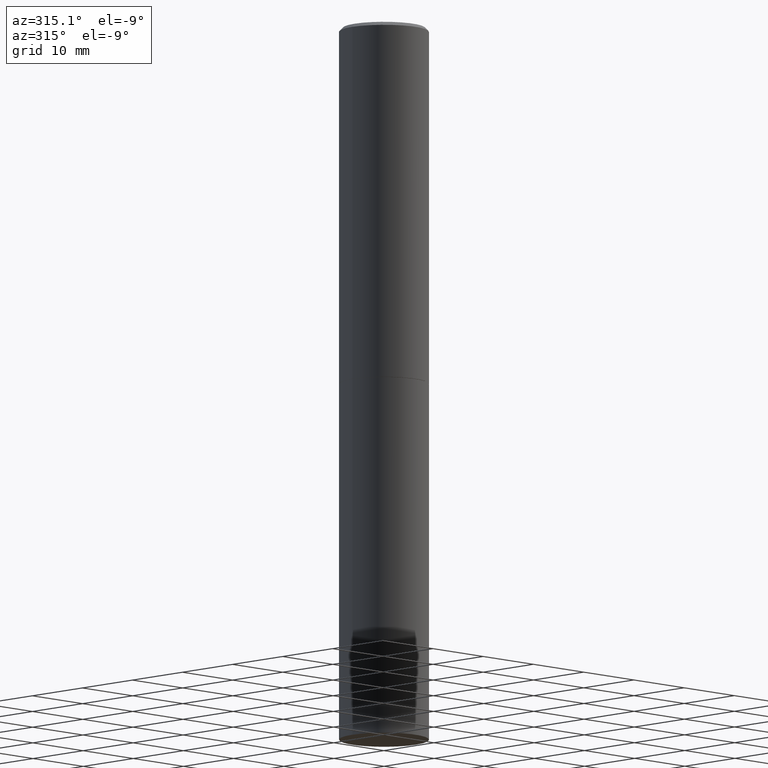
[diagram: clean part render]
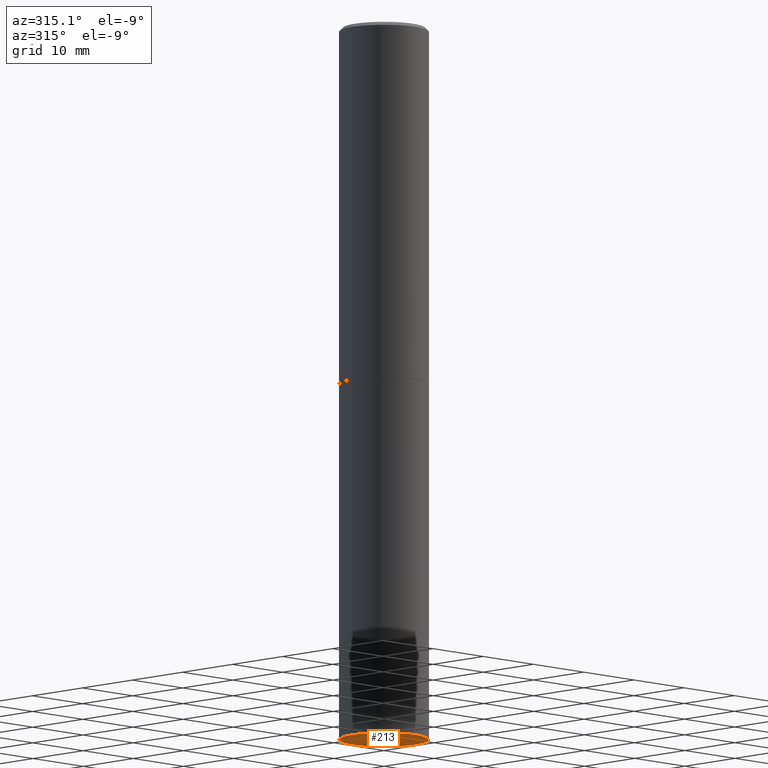
[diagram: same view with one face highlighted and labeled with its STEP entity id]
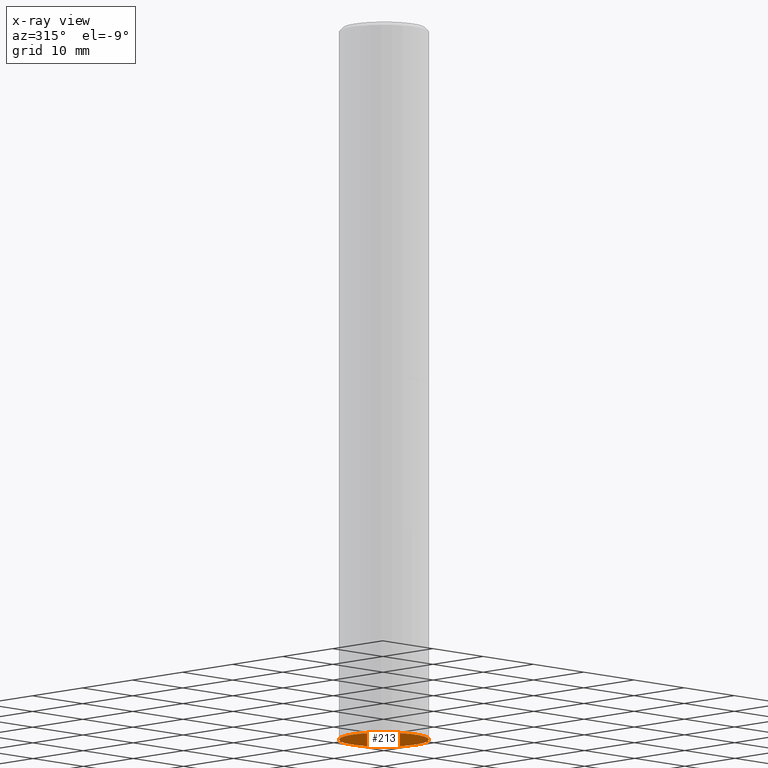
[diagram: x-ray of the same camera — body ghosted, the highlighted face saturated]
A machine part, auxiliary view. The second image highlights one B-rep face of the part: STEP entity #213.
The next image is the same camera in x-ray: the body ghosted, the highlighted face saturated — about 0% of this face is hidden behind the body in this view.
In plain terms, the highlighted planar face has unit normal (0, -0, -1).
Its self-contained STEP definition (entity closure, byte-faithful):
#27 = CARTESIAN_POINT ( 'NONE',  ( 9.781875224740546387E-29, -1.396592535537258233E-14, -4.000000000000000000 ) ) ;
#42 = ORIENTED_EDGE ( 'NONE', *, *, #191, .F. ) ;
#43 = AXIS2_PLACEMENT_3D ( 'NONE', #27, #53, #342 ) ;
#47 = CARTESIAN_POINT ( 'NONE',  ( 0.2500000000000000000, -1.571166602479415059E-14, -4.000000000000000000 ) ) ;
#49 = PLANE ( 'NONE',  #121 ) ;
#53 = DIRECTION ( 'NONE',  ( -2.445468806185136597E-29, 3.491481338843145583E-15, 1.000000000000000000 ) ) ;
#57 = FACE_OUTER_BOUND ( 'NONE', #272, .T. ) ;
#67 = CIRCLE ( 'NONE', #312, 0.2500000000000000000 ) ;
#69 = EDGE_CURVE ( 'NONE', #129, #303, #120, .T. ) ;
#78 = DIRECTION ( 'NONE',  ( 2.438088387897960049E-29, -3.491481338843145188E-15, -1.000000000000000000 ) ) ;
#80 = DIRECTION ( 'NONE',  ( 1.000000000000000000, -6.982962677686270655E-15, 0.000000000000000000 ) ) ;
#90 = CARTESIAN_POINT ( 'NONE',  ( -0.2500000000000000000, -8.698087177129185889E-15, -4.000000000000000000 ) ) ;
#120 = CIRCLE ( 'NONE', #43, 0.2500000000000000000 ) ;
#121 = AXIS2_PLACEMENT_3D ( 'NONE', #171, #78, #309 ) ;
#129 = VERTEX_POINT ( 'NONE', #90 ) ;
#171 = CARTESIAN_POINT ( 'NONE',  ( 1.745740669421664299E-15, 0.2499999999999860389, -4.000000000000000888 ) ) ;
#191 = EDGE_CURVE ( 'NONE', #303, #129, #67, .T. ) ;
#213 = ADVANCED_FACE ( 'NONE', ( #57 ), #49, .T. ) ;
#223 = DIRECTION ( 'NONE',  ( -2.445468806185136597E-29, 3.491481338843145583E-15, 1.000000000000000000 ) ) ;
#259 = CARTESIAN_POINT ( 'NONE',  ( 9.781875224740546387E-29, -1.396592535537258233E-14, -4.000000000000000000 ) ) ;
#272 = EDGE_LOOP ( 'NONE', ( #42, #327 ) ) ;
#303 = VERTEX_POINT ( 'NONE', #47 ) ;
#309 = DIRECTION ( 'NONE',  ( -1.000000000000000000, 6.982962677686265922E-15, -4.876176775795935793E-29 ) ) ;
#312 = AXIS2_PLACEMENT_3D ( 'NONE', #259, #223, #80 ) ;
#327 = ORIENTED_EDGE ( 'NONE', *, *, #69, .F. ) ;
#342 = DIRECTION ( 'NONE',  ( 1.000000000000000000, -6.982962677686270655E-15, 0.000000000000000000 ) ) ;